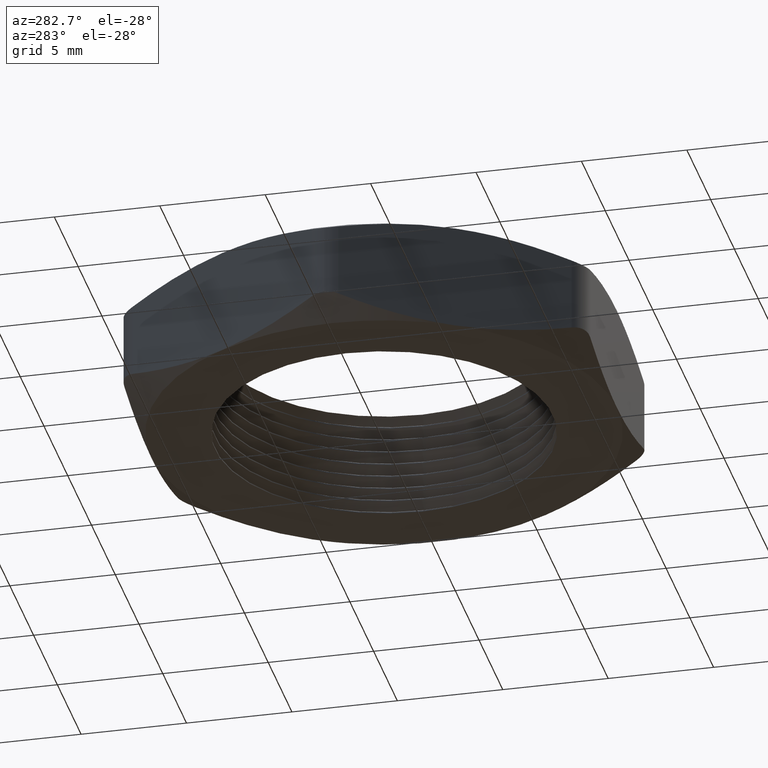
[diagram: clean part render]
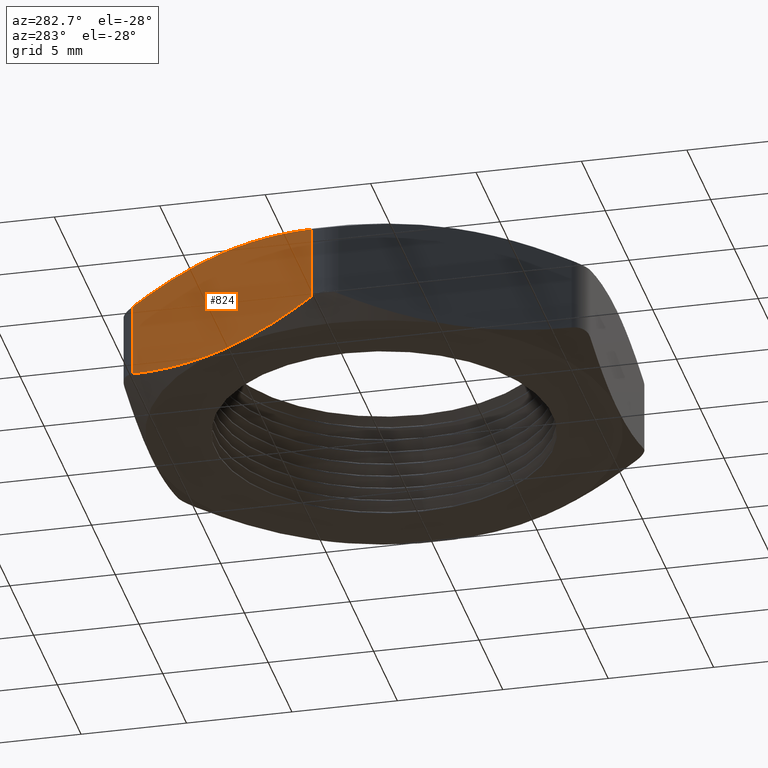
[diagram: same view with one face highlighted and labeled with its STEP entity id]
A machine part, auxiliary view. The second image highlights one B-rep face of the part: STEP entity #824.
In plain terms, the highlighted planar face has unit normal (0.866, -0.5, 0).
Its self-contained STEP definition (entity closure, byte-faithful):
#102 = DIRECTION ( 'NONE',  ( 0.5000000000000001100, 0.8660254037844386000, 0.0000000000000000000 ) ) ;
#103 = DIRECTION ( 'NONE',  ( 0.8660254037844386000, -0.5000000000000001100, 0.0000000000000000000 ) ) ;
#104 = CARTESIAN_POINT ( 'NONE',  ( -0.2511473670974873100, 0.4350000000000000000, 0.2000000000000000100 ) ) ;
#105 = AXIS2_PLACEMENT_3D ( 'NONE', #104, #103, #102 ) ;
#106 = PLANE ( 'NONE',  #105 ) ;
#107 = FACE_OUTER_BOUND ( 'NONE', #1017, .T. ) ;
#168 = CARTESIAN_POINT ( 'NONE',  ( -0.2837871564601909800, 0.3784662264754508100, 0.1786768749714148500 ) ) ;
#169 = CARTESIAN_POINT ( 'NONE',  ( -0.2655811238272359800, 0.4099999999999861500, 0.1691111204119914400 ) ) ;
#170 = CARTESIAN_POINT ( 'NONE',  ( -0.2655811238272359800, 0.4099999999999861500, 0.1691111204119914400 ) ) ;
#171 = B_SPLINE_CURVE_WITH_KNOTS ( 'NONE', 3,
 ( #169, #168, #223, #222, #221, #220 ),
 .UNSPECIFIED., .F., .F.,
 ( 4, 2, 4 ),
 ( 0.0007547846720777238700, 0.003604835427813330600, 0.006454886183548937300 ),
 .UNSPECIFIED. ) ;
#206 = CARTESIAN_POINT ( 'NONE',  ( -0.2655811238272279300, 0.4100000000000000900, 0.03088887958801292400 ) ) ;
#207 = CARTESIAN_POINT ( 'NONE',  ( -0.2837458391924346200, 0.3785377900824350400, 0.02134483381327118400 ) ) ;
#208 = CARTESIAN_POINT ( 'NONE',  ( -0.3020577287336837500, 0.3468206670144024000, 0.01357779650034246200 ) ) ;
#209 = CARTESIAN_POINT ( 'NONE',  ( -0.3298266491273886800, 0.2987234860211699400, 0.005562610060685205100 ) ) ;
#210 = CARTESIAN_POINT ( 'NONE',  ( -0.3391331730990980200, 0.2826041136603114600, 0.003497212773719208000 ) ) ;
#211 = CARTESIAN_POINT ( 'NONE',  ( -0.3578578856206230400, 0.2501719602159093200, 0.0007146771506090474100 ) ) ;
#212 = CARTESIAN_POINT ( 'NONE',  ( -0.3673126282573852500, 0.2337958655965487200, -2.332008425255638000E-016 ) ) ;
#213 = CARTESIAN_POINT ( 'NONE',  ( -0.3767210506462308500, 0.2175000000000001400, 0.0000000000000000000 ) ) ;
#214 = B_SPLINE_CURVE_WITH_KNOTS ( 'NONE', 3,
 ( #213, #212, #211, #210, #209, #208, #207, #206 ),
 .UNSPECIFIED., .F., .F.,
 ( 4, 2, 2, 4 ),
 ( 0.006454886183548940800, 0.007874161493463224500, 0.009293436803377509000, 0.01213198742320607600 ),
 .UNSPECIFIED. ) ;
#215 = CARTESIAN_POINT ( 'NONE',  ( -0.2655811238272279300, 0.4100000000000000900, 0.03088887958801292400 ) ) ;
#216 = DIRECTION ( 'NONE',  ( 0.0000000000000000000, 0.0000000000000000000, -1.000000000000000000 ) ) ;
#217 = VECTOR ( 'NONE', #216, 39.37007874015748100 ) ;
#218 = CARTESIAN_POINT ( 'NONE',  ( -0.2655811238272279800, 0.4099999999999999800, 0.2000000000000000100 ) ) ;
#219 = LINE ( 'NONE', #218, #217 ) ;
#220 = CARTESIAN_POINT ( 'NONE',  ( -0.3767210506462309000, 0.2175000000000001100, 0.2000000000000000100 ) ) ;
#221 = CARTESIAN_POINT ( 'NONE',  ( -0.3578279710919703400, 0.2502237736994201700, 0.2000000000000002600 ) ) ;
#222 = CARTESIAN_POINT ( 'NONE',  ( -0.3391417025951251600, 0.2825893401398296700, 0.1971205695651016600 ) ) ;
#223 = CARTESIAN_POINT ( 'NONE',  ( -0.3021222077936816500, 0.3467089860064618800, 0.1864463021118123700 ) ) ;
#266 = CARTESIAN_POINT ( 'NONE',  ( -0.4878609774652339400, 0.02500000000000010500, 0.1691111204119870000 ) ) ;
#267 = CARTESIAN_POINT ( 'NONE',  ( -0.4696962621000271800, 0.05646220991756516900, 0.1786551661867287500 ) ) ;
#268 = CARTESIAN_POINT ( 'NONE',  ( -0.4513843725587781100, 0.08817933298559776900, 0.1864222034996575500 ) ) ;
#269 = CARTESIAN_POINT ( 'NONE',  ( -0.4236154521650731300, 0.1362765139788302800, 0.1944373899393147800 ) ) ;
#270 = CARTESIAN_POINT ( 'NONE',  ( -0.4143089281933635700, 0.1523958863396887300, 0.1965027872262807600 ) ) ;
#271 = CARTESIAN_POINT ( 'NONE',  ( -0.3955842156718387700, 0.1848280397840909900, 0.1992853228493910200 ) ) ;
#272 = CARTESIAN_POINT ( 'NONE',  ( -0.3861294730350761700, 0.2012041344034515000, 0.2000000000000002300 ) ) ;
#273 = CARTESIAN_POINT ( 'NONE',  ( -0.3767210506462309000, 0.2175000000000001100, 0.2000000000000000100 ) ) ;
#274 = CARTESIAN_POINT ( 'NONE',  ( -0.3767210506462309000, 0.2175000000000001100, 0.2000000000000000100 ) ) ;
#275 = B_SPLINE_CURVE_WITH_KNOTS ( 'NONE', 3,
 ( #273, #272, #271, #270, #269, #268, #267, #266 ),
 .UNSPECIFIED., .F., .F.,
 ( 4, 2, 2, 4 ),
 ( 0.006454886183548937300, 0.007874161493463222700, 0.009293436803377507300, 0.01213198742320607800 ),
 .UNSPECIFIED. ) ;
#276 = CARTESIAN_POINT ( 'NONE',  ( -0.4878609774652339400, 0.02500000000000010500, 0.1691111204119870000 ) ) ;
#277 = DIRECTION ( 'NONE',  ( 0.0000000000000000000, 0.0000000000000000000, 1.000000000000000000 ) ) ;
#278 = VECTOR ( 'NONE', #277, 39.37007874015748100 ) ;
#279 = CARTESIAN_POINT ( 'NONE',  ( -0.4878609774652339400, 0.02500000000000007400, 0.2000000000000000100 ) ) ;
#280 = LINE ( 'NONE', #279, #278 ) ;
#293 = CARTESIAN_POINT ( 'NONE',  ( -0.4878609774652258900, 0.02500000000001398300, 0.03088887958800861200 ) ) ;
#335 = CARTESIAN_POINT ( 'NONE',  ( -0.3767210506462308500, 0.2175000000000001400, 0.0000000000000000000 ) ) ;
#336 = CARTESIAN_POINT ( 'NONE',  ( -0.3956141302004911900, 0.1847762263005801600, -2.385031353843605000E-016 ) ) ;
#337 = CARTESIAN_POINT ( 'NONE',  ( -0.4143003986973367000, 0.1524106598601705500, 0.002879430434898293300 ) ) ;
#338 = CARTESIAN_POINT ( 'NONE',  ( -0.4513198934987802700, 0.08829101399353833600, 0.01355369788818769300 ) ) ;
#339 = CARTESIAN_POINT ( 'NONE',  ( -0.4696549448322707700, 0.05653377352454911500, 0.02132312502858515000 ) ) ;
#340 = CARTESIAN_POINT ( 'NONE',  ( -0.4878609774652258900, 0.02500000000001398300, 0.03088887958800861200 ) ) ;
#342 = B_SPLINE_CURVE_WITH_KNOTS ( 'NONE', 3,
 ( #340, #339, #338, #337, #336, #335 ),
 .UNSPECIFIED., .F., .F.,
 ( 4, 2, 4 ),
 ( 0.0007547846720777221300, 0.003604835427813331400, 0.006454886183548940800 ),
 .UNSPECIFIED. ) ;
#824 = ADVANCED_FACE ( 'NONE', ( #107 ), #106, .F. ) ;
#854 = ORIENTED_EDGE ( 'NONE', *, *, #1622, .F. ) ;
#1017 = EDGE_LOOP ( 'NONE', ( #854, #1591, #1594, #1562, #1565, #1568 ) ) ;
#1074 = CARTESIAN_POINT ( 'NONE',  ( -0.3767210506462308500, 0.2175000000000001400, 0.0000000000000000000 ) ) ;
#1562 = ORIENTED_EDGE ( 'NONE', *, *, #1563, .F. ) ;
#1563 = EDGE_CURVE ( 'NONE', #1564, #1596, #171, .T. ) ;
#1564 = VERTEX_POINT ( 'NONE', #170 ) ;
#1565 = ORIENTED_EDGE ( 'NONE', *, *, #1566, .T. ) ;
#1566 = EDGE_CURVE ( 'NONE', #1564, #1567, #219, .T. ) ;
#1567 = VERTEX_POINT ( 'NONE', #215 ) ;
#1568 = ORIENTED_EDGE ( 'NONE', *, *, #1569, .F. ) ;
#1569 = EDGE_CURVE ( 'NONE', #1993, #1567, #214, .T. ) ;
#1591 = ORIENTED_EDGE ( 'NONE', *, *, #1592, .T. ) ;
#1592 = EDGE_CURVE ( 'NONE', #1617, #1593, #280, .T. ) ;
#1593 = VERTEX_POINT ( 'NONE', #276 ) ;
#1594 = ORIENTED_EDGE ( 'NONE', *, *, #1595, .F. ) ;
#1595 = EDGE_CURVE ( 'NONE', #1596, #1593, #275, .T. ) ;
#1596 = VERTEX_POINT ( 'NONE', #274 ) ;
#1617 = VERTEX_POINT ( 'NONE', #293 ) ;
#1622 = EDGE_CURVE ( 'NONE', #1617, #1993, #342, .T. ) ;
#1993 = VERTEX_POINT ( 'NONE', #1074 ) ;